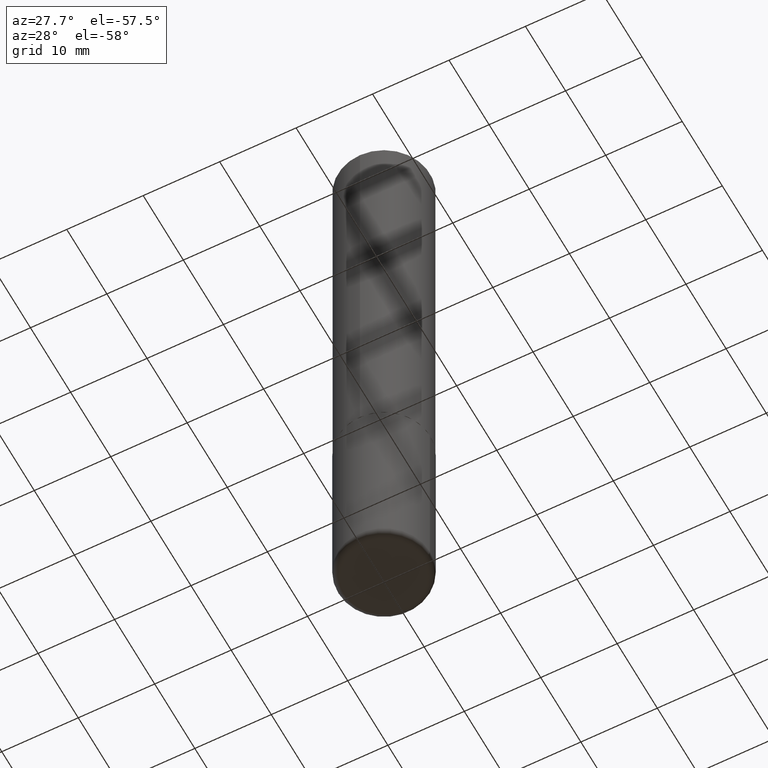
[diagram: clean part render]
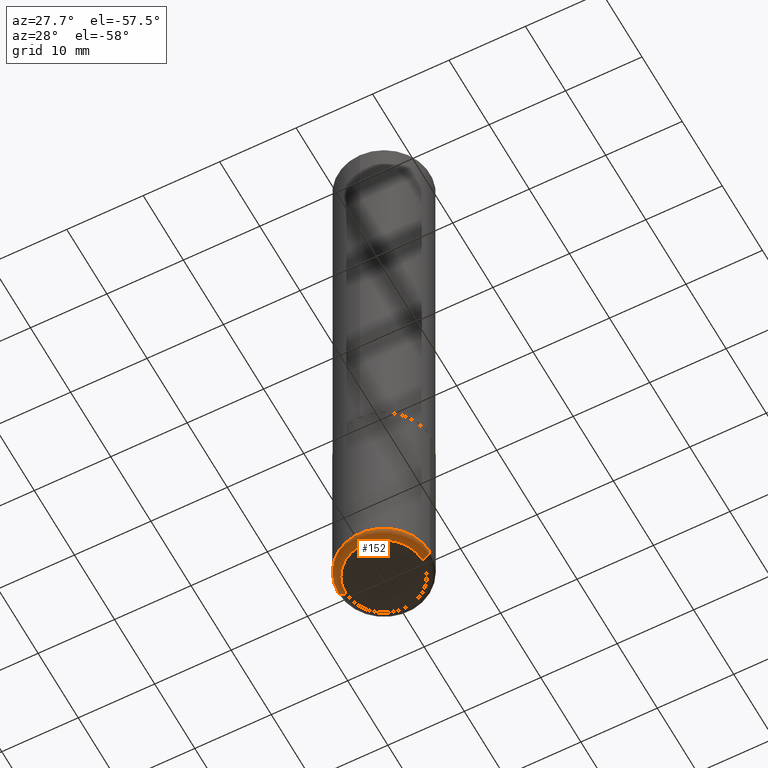
[diagram: same view with one face highlighted and labeled with its STEP entity id]
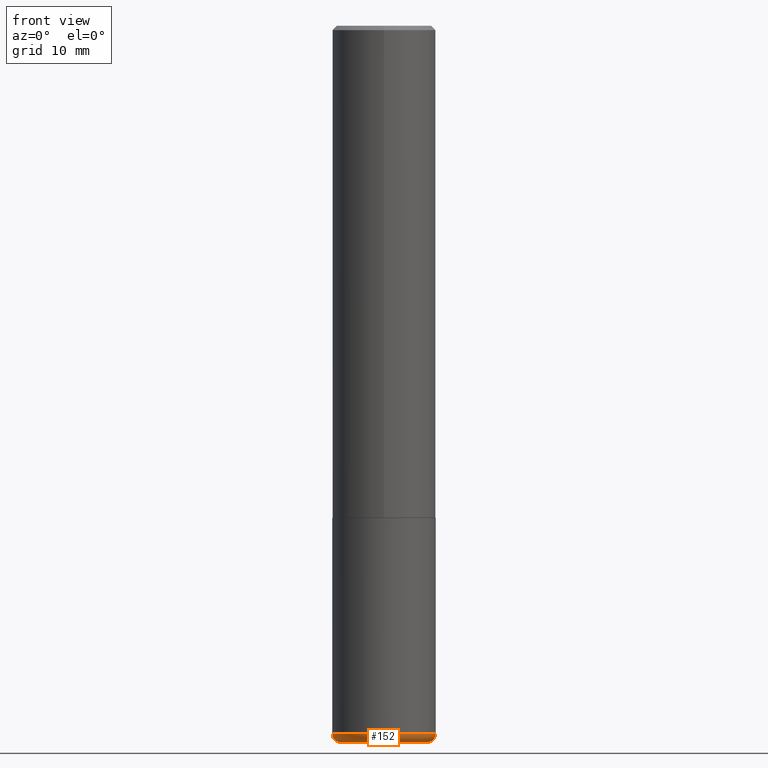
[diagram: same view with one face highlighted and labeled with its STEP entity id]
A machine part, auxiliary view. The second image highlights one B-rep face of the part: STEP entity #152.
A second angle (front view) of the same face is appended — the face is thin or edge-on in the first view.
In plain terms, the highlighted toroidal blend (fillet) surface has major radius 4.9987 mm and minor (blend) radius 1.0008 mm.
Its self-contained STEP definition (entity closure, byte-faithful):
#7 = ORIENTED_EDGE ( 'NONE', *, *, #96, .T. ) ;
#10 = ORIENTED_EDGE ( 'NONE', *, *, #332, .F. ) ;
#24 = DIRECTION ( 'NONE',  ( 1.000000000000000000, -6.982962677686267499E-15, 0.000000000000000000 ) ) ;
#37 = DIRECTION ( 'NONE',  ( -2.445468806185136597E-29, 3.491481338843145583E-15, 1.000000000000000000 ) ) ;
#39 = CARTESIAN_POINT ( 'NONE',  ( -0.2362000000000000210, -9.593247264321970832E-15, -3.228299999999999947 ) ) ;
#44 = VERTEX_POINT ( 'NONE', #95 ) ;
#67 = CARTESIAN_POINT ( 'NONE',  ( 7.894706947007477118E-29, -1.127154920618732880E-14, -3.228299999999999947 ) ) ;
#87 = TOROIDAL_SURFACE ( 'NONE', #312, 0.1968000000000000027, 0.03940000000000005997 ) ;
#95 = CARTESIAN_POINT ( 'NONE',  ( 0.1968000000000000027, -1.278336062590640454E-14, -3.267700000000000049 ) ) ;
#96 = EDGE_CURVE ( 'NONE', #44, #283, #198, .T. ) ;
#105 = AXIS2_PLACEMENT_3D ( 'NONE', #67, #330, #202 ) ;
#107 = FACE_OUTER_BOUND ( 'NONE', #258, .T. ) ;
#115 = ORIENTED_EDGE ( 'NONE', *, *, #168, .T. ) ;
#120 = DIRECTION ( 'NONE',  ( -1.000000000000000000, 7.105427357601014480E-15, 0.000000000000000000 ) ) ;
#148 = CIRCLE ( 'NONE', #185, 0.03940000000000005997 ) ;
#152 = ADVANCED_FACE ( 'NONE', ( #107 ), #87, .T. ) ;
#168 = EDGE_CURVE ( 'NONE', #210, #44, #364, .T. ) ;
#181 = VERTEX_POINT ( 'NONE', #39 ) ;
#185 = AXIS2_PLACEMENT_3D ( 'NONE', #311, #247, #120 ) ;
#190 = CARTESIAN_POINT ( 'NONE',  ( 0.1968000000000000027, -1.264579626115598374E-14, -3.228299999999999947 ) ) ;
#191 = AXIS2_PLACEMENT_3D ( 'NONE', #269, #393, #369 ) ;
#198 = CIRCLE ( 'NONE', #373, 0.03940000000000005997 ) ;
#202 = DIRECTION ( 'NONE',  ( 1.000000000000000000, -6.982962677686265133E-15, 0.000000000000000000 ) ) ;
#210 = VERTEX_POINT ( 'NONE', #266 ) ;
#232 = DIRECTION ( 'NONE',  ( 1.000000000000000000, -6.982962677686270655E-15, 4.883557194083114583E-29 ) ) ;
#247 = DIRECTION ( 'NONE',  ( 7.105427357601001859E-15, 1.000000000000000000, -3.491481338843145583E-15 ) ) ;
#248 = EDGE_CURVE ( 'NONE', #181, #283, #285, .T. ) ;
#258 = EDGE_LOOP ( 'NONE', ( #10, #115, #7, #292 ) ) ;
#266 = CARTESIAN_POINT ( 'NONE',  ( -0.1968000000000000027, -9.802006365641922115E-15, -3.267700000000000049 ) ) ;
#269 = CARTESIAN_POINT ( 'NONE',  ( 7.991058417971171713E-29, -1.140911357093774644E-14, -3.267700000000000049 ) ) ;
#283 = VERTEX_POINT ( 'NONE', #403 ) ;
#285 = CIRCLE ( 'NONE', #105, 0.2361999999999999933 ) ;
#292 = ORIENTED_EDGE ( 'NONE', *, *, #248, .F. ) ;
#311 = CARTESIAN_POINT ( 'NONE',  ( -0.1968000000000000027, -9.873201102211451027E-15, -3.228299999999999947 ) ) ;
#312 = AXIS2_PLACEMENT_3D ( 'NONE', #360, #37, #232 ) ;
#330 = DIRECTION ( 'NONE',  ( -2.445468806185136597E-29, 3.491481338843145583E-15, 1.000000000000000000 ) ) ;
#332 = EDGE_CURVE ( 'NONE', #210, #181, #148, .T. ) ;
#360 = CARTESIAN_POINT ( 'NONE',  ( 7.894706947007477118E-29, -1.127154920618732880E-14, -3.228299999999999947 ) ) ;
#364 = CIRCLE ( 'NONE', #191, 0.1968000000000000027 ) ;
#369 = DIRECTION ( 'NONE',  ( 1.000000000000000000, -6.982962677686271444E-15, 0.000000000000000000 ) ) ;
#373 = AXIS2_PLACEMENT_3D ( 'NONE', #190, #381, #24 ) ;
#381 = DIRECTION ( 'NONE',  ( -6.982962677686266711E-15, -1.000000000000000000, 3.491481338843145583E-15 ) ) ;
#393 = DIRECTION ( 'NONE',  ( -2.445468806185136597E-29, 3.491481338843145583E-15, 1.000000000000000000 ) ) ;
#403 = CARTESIAN_POINT ( 'NONE',  ( 0.2362000000000000210, -1.292092499065682375E-14, -3.228299999999999947 ) ) ;